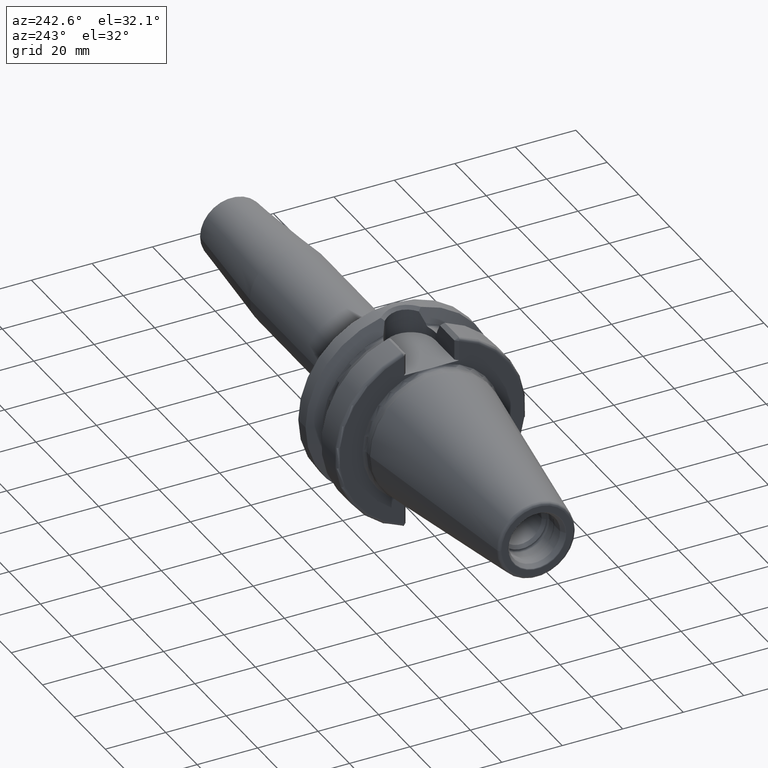
[diagram: clean part render]
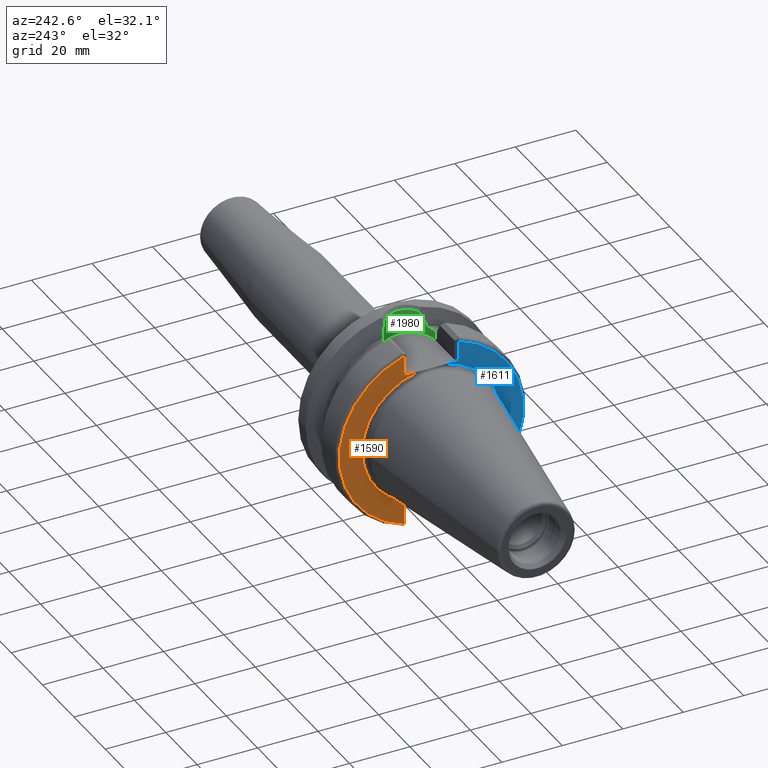
[diagram: same view with three faces highlighted in distinct colors, each labeled with its STEP entity id]
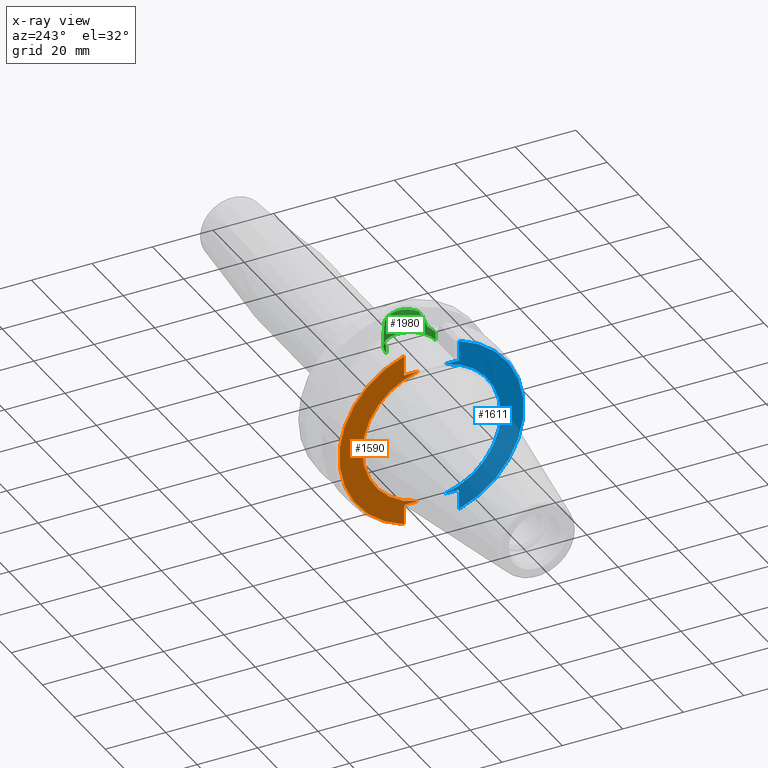
[diagram: x-ray of the same camera — body ghosted, the three highlighted faces saturated]
A machine part, auxiliary view with three faces highlighted in distinct colors.
The next image is the same camera in x-ray (body ghosted, the three faces saturated) — at least one of them is partly hidden behind the body in this view.
Their STEP definitions:

[orange] entity #1590 — the highlighted planar face has unit normal (1, 0, 0).
#96=CARTESIAN_POINT('',(2.E0,0.E0,0.E0));
#97=DIRECTION('',(-1.E0,0.E0,0.E0));
#98=DIRECTION('',(0.E0,1.E0,0.E0));
#99=AXIS2_PLACEMENT_3D('',#96,#97,#98);
#127=DIRECTION('',(2.137863157138E-6,2.138092596513E-6,9.999999999954E-1));
#128=VECTOR('',#127,6.649288203884E0);
#129=CARTESIAN_POINT('',(1.999985784732E0,9.094985783206E0,-2.909928820385E1));
#130=LINE('',#129,#128);
#131=DIRECTION('',(-4.462834027332E-6,-4.463945839096E-6,9.999999999801E-1));
#132=VECTOR('',#131,6.649296399125E0);
#133=CARTESIAN_POINT('',(2.E0,9.095E0,2.245E1));
#134=LINE('',#133,#132);
#592=CARTESIAN_POINT('',(2.E0,0.E0,0.E0));
#593=DIRECTION('',(-1.E0,0.E0,0.E0));
#594=DIRECTION('',(0.E0,2.983190614061E-1,9.544662055839E-1));
#595=AXIS2_PLACEMENT_3D('',#592,#593,#594);
#688=DIRECTION('',(0.E0,1.E0,0.E0));
#689=VECTOR('',#688,4.706022328605E0);
#690=CARTESIAN_POINT('',(2.E0,4.388977671395E0,2.245E1));
#691=LINE('',#690,#689);
#709=CARTESIAN_POINT('',(2.E0,0.E0,0.E0));
#710=DIRECTION('',(1.E0,0.E0,0.E0));
#711=DIRECTION('',(0.E0,1.E0,0.E0));
#712=AXIS2_PLACEMENT_3D('',#709,#710,#711);
#746=DIRECTION('',(0.E0,-1.E0,0.E0));
#747=VECTOR('',#746,4.706022328605E0);
#748=CARTESIAN_POINT('',(2.E0,9.095E0,-2.245E1));
#749=LINE('',#748,#747);
#1242=CARTESIAN_POINT('',(2.E0,2.2875E1,0.E0));
#1244=VERTEX_POINT('',#1242);
#1312=CARTESIAN_POINT('',(2.E0,4.388977671395E0,2.245E1));
#1313=VERTEX_POINT('',#1312);
#1320=CARTESIAN_POINT('',(2.E0,4.388977671395E0,-2.245E1));
#1321=VERTEX_POINT('',#1320);
#1358=CARTESIAN_POINT('',(2.E0,9.095027762300E0,2.909928051090E1));
#1360=VERTEX_POINT('',#1358);
#1362=CARTESIAN_POINT('',(2.E0,9.095E0,2.245E1));
#1363=VERTEX_POINT('',#1362);
#1372=CARTESIAN_POINT('',(1.999985784732E0,9.094985783206E0,-2.909928820385E1));
#1373=CARTESIAN_POINT('',(2.E0,9.095E0,-2.245E1));
#1374=VERTEX_POINT('',#1372);
#1375=VERTEX_POINT('',#1373);
#1570=CARTESIAN_POINT('',(2.E0,0.E0,0.E0));
#1571=DIRECTION('',(1.E0,0.E0,0.E0));
#1572=DIRECTION('',(0.E0,-1.E0,0.E0));
#1573=AXIS2_PLACEMENT_3D('',#1570,#1571,#1572);
#1574=PLANE('',#1573);
#1576=ORIENTED_EDGE('',*,*,#1575,.F.);
#1578=ORIENTED_EDGE('',*,*,#1577,.F.);
#1580=ORIENTED_EDGE('',*,*,#1579,.F.);
#1582=ORIENTED_EDGE('',*,*,#1581,.F.);
#1584=ORIENTED_EDGE('',*,*,#1583,.F.);
#1585=ORIENTED_EDGE('',*,*,#1556,.T.);
#1587=ORIENTED_EDGE('',*,*,#1586,.F.);
#1588=EDGE_LOOP('',(#1576,#1578,#1580,#1582,#1584,#1585,#1587));
#1589=FACE_OUTER_BOUND('',#1588,.F.);
#1590=ADVANCED_FACE('',(#1589),#1574,.F.);
#100=CIRCLE('',#99,2.2875E1);
#596=CIRCLE('',#595,3.04875E1);
#713=CIRCLE('',#712,2.2875E1);
#1556=EDGE_CURVE('',#1244,#1321,#100,.T.);
#1575=EDGE_CURVE('',#1374,#1375,#130,.T.);
#1577=EDGE_CURVE('',#1360,#1374,#596,.T.);
#1579=EDGE_CURVE('',#1363,#1360,#134,.T.);
#1581=EDGE_CURVE('',#1313,#1363,#691,.T.);
#1583=EDGE_CURVE('',#1244,#1313,#713,.T.);
#1586=EDGE_CURVE('',#1375,#1321,#749,.T.);

[blue] entity #1611 — the highlighted planar face has unit normal (1, 0, 0).
#111=CARTESIAN_POINT('',(2.E0,0.E0,0.E0));
#112=DIRECTION('',(-1.E0,0.E0,0.E0));
#113=DIRECTION('',(0.E0,-1.918678763451E-1,-9.814207650273E-1));
#114=AXIS2_PLACEMENT_3D('',#111,#112,#113);
#135=DIRECTION('',(-2.137863157207E-6,2.138092595446E-6,-9.999999999954E-1));
#136=VECTOR('',#135,6.649288203879E0);
#137=CARTESIAN_POINT('',(2.E0,-9.095E0,-2.245E1));
#138=LINE('',#137,#136);
#139=DIRECTION('',(4.462834027234E-6,-4.463945838797E-6,-9.999999999801E-1));
#140=VECTOR('',#139,6.649296399172E0);
#141=CARTESIAN_POINT('',(1.999970325294E0,-9.094970317901E0,2.909929639904E1));
#142=LINE('',#141,#140);
#597=CARTESIAN_POINT('',(1.999985784732E0,-9.094985783206E0,-2.909928820385E1));
#608=CARTESIAN_POINT('',(2.E0,0.E0,0.E0));
#609=DIRECTION('',(-1.E0,0.E0,0.E0));
#610=DIRECTION('',(0.E0,-2.983190208830E-1,-9.544662182495E-1));
#611=AXIS2_PLACEMENT_3D('',#608,#609,#610);
#684=DIRECTION('',(0.E0,1.E0,0.E0));
#685=VECTOR('',#684,4.706022328605E0);
#686=CARTESIAN_POINT('',(2.E0,-9.095E0,2.245E1));
#687=LINE('',#686,#685);
#725=CARTESIAN_POINT('',(2.E0,0.E0,0.E0));
#726=DIRECTION('',(1.E0,0.E0,0.E0));
#727=DIRECTION('',(0.E0,-1.918678763451E-1,9.814207650273E-1));
#728=AXIS2_PLACEMENT_3D('',#725,#726,#727);
#750=DIRECTION('',(0.E0,-1.E0,0.E0));
#751=VECTOR('',#750,4.706022328605E0);
#752=CARTESIAN_POINT('',(2.E0,-4.388977671395E0,-2.245E1));
#753=LINE('',#752,#751);
#1248=CARTESIAN_POINT('',(2.E0,-2.2875E1,0.E0));
#1250=VERTEX_POINT('',#1248);
#1314=CARTESIAN_POINT('',(2.E0,-4.388977671395E0,2.245E1));
#1315=VERTEX_POINT('',#1314);
#1322=CARTESIAN_POINT('',(2.E0,-4.388977671395E0,-2.245E1));
#1323=VERTEX_POINT('',#1322);
#1352=CARTESIAN_POINT('',(1.999970325294E0,-9.094970317901E0,2.909929639904E1));
#1353=CARTESIAN_POINT('',(2.E0,-9.095E0,2.245E1));
#1354=VERTEX_POINT('',#1352);
#1355=VERTEX_POINT('',#1353);
#1377=VERTEX_POINT('',#597);
#1379=CARTESIAN_POINT('',(2.E0,-9.095E0,-2.245E1));
#1380=VERTEX_POINT('',#1379);
#1591=CARTESIAN_POINT('',(2.E0,0.E0,0.E0));
#1592=DIRECTION('',(1.E0,0.E0,0.E0));
#1593=DIRECTION('',(0.E0,-1.E0,0.E0));
#1594=AXIS2_PLACEMENT_3D('',#1591,#1592,#1593);
#1595=PLANE('',#1594);
#1597=ORIENTED_EDGE('',*,*,#1596,.F.);
#1599=ORIENTED_EDGE('',*,*,#1598,.F.);
#1600=ORIENTED_EDGE('',*,*,#1563,.T.);
#1602=ORIENTED_EDGE('',*,*,#1601,.F.);
#1604=ORIENTED_EDGE('',*,*,#1603,.F.);
#1606=ORIENTED_EDGE('',*,*,#1605,.F.);
#1608=ORIENTED_EDGE('',*,*,#1607,.F.);
#1609=EDGE_LOOP('',(#1597,#1599,#1600,#1602,#1604,#1606,#1608));
#1610=FACE_OUTER_BOUND('',#1609,.F.);
#1611=ADVANCED_FACE('',(#1610),#1595,.F.);
#115=CIRCLE('',#114,2.2875E1);
#612=CIRCLE('',#611,3.04875E1);
#729=CIRCLE('',#728,2.2875E1);
#1563=EDGE_CURVE('',#1323,#1250,#115,.T.);
#1596=EDGE_CURVE('',#1380,#1377,#138,.T.);
#1598=EDGE_CURVE('',#1323,#1380,#753,.T.);
#1601=EDGE_CURVE('',#1315,#1250,#729,.T.);
#1603=EDGE_CURVE('',#1355,#1315,#687,.T.);
#1605=EDGE_CURVE('',#1354,#1355,#142,.T.);
#1607=EDGE_CURVE('',#1377,#1354,#612,.T.);

[green] entity #1980 — the highlighted cylindrical surface (edge-blend (fillet) strip) has radius 8.095 mm, axis along (0, 0, 1).
#360=CARTESIAN_POINT('',(1.83875E1,7.421588020768E0,2.530929979770E1));
#361=CARTESIAN_POINT('',(1.804170386658E1,7.572200800424E0,2.526513476705E1));
#362=CARTESIAN_POINT('',(1.734035783533E1,7.820815510938E0,2.518941465745E1));
#363=CARTESIAN_POINT('',(1.625266243215E1,8.045449937199E0,2.511808739773E1));
#364=CARTESIAN_POINT('',(1.552274115811E1,8.095E0,2.510202382279E1));
#365=CARTESIAN_POINT('',(1.5155E1,8.095E0,2.510202382279E1));
#379=CARTESIAN_POINT('',(1.5155E1,-8.095E0,2.510202382279E1));
#380=CARTESIAN_POINT('',(1.552274116086E1,-8.095E0,2.510202382279E1));
#381=CARTESIAN_POINT('',(1.625266243851E1,-8.045449936191E0,2.511808739805E1));
#382=CARTESIAN_POINT('',(1.734035783411E1,-7.820815511030E0,2.518941465742E1));
#383=CARTESIAN_POINT('',(1.804170386611E1,-7.572200800631E0,2.526513476699E1));
#384=CARTESIAN_POINT('',(1.83875E1,-7.421588020768E0,2.530929979770E1));
#470=DIRECTION('',(0.E0,0.E0,1.E0));
#471=VECTOR('',#470,2.652023822792E0);
#472=CARTESIAN_POINT('',(1.5155E1,-8.095E0,2.245E1));
#473=LINE('',#472,#471);
#474=CARTESIAN_POINT('',(1.91375E1,7.047603759435E0,2.619345159100E1));
#475=CARTESIAN_POINT('',(1.91375E1,7.047603759435E0,2.612998725804E1));
#476=CARTESIAN_POINT('',(1.912324356271E1,7.055692563985E0,2.600243680224E1));
#477=CARTESIAN_POINT('',(1.905138585928E1,7.095863125167E0,2.579909751285E1));
#478=CARTESIAN_POINT('',(1.893129669655E1,7.160762150281E0,2.561408219456E1));
#479=CARTESIAN_POINT('',(1.877499389890E1,7.241428280265E0,2.546209548146E1));
#480=CARTESIAN_POINT('',(1.857872916820E1,7.336410466726E0,2.535018075128E1));
#481=CARTESIAN_POINT('',(1.845215642376E1,7.393426677236E0,2.531755770651E1));
#482=CARTESIAN_POINT('',(1.83875E1,7.421588020768E0,2.530929979770E1));
#484=DIRECTION('',(0.E0,0.E0,1.E0));
#485=VECTOR('',#484,5.185648086091E-2);
#486=CARTESIAN_POINT('',(1.91375E1,7.047603759435E0,2.619345159100E1));
#487=LINE('',#486,#485);
#488=CARTESIAN_POINT('',(2.097101805574E1,5.630538071564E0,2.982397761288E1));
#489=CARTESIAN_POINT('',(2.082604881782E1,5.780282855198E0,2.954017722398E1));
#490=CARTESIAN_POINT('',(2.053095055184E1,6.062081832034E0,2.896282820239E1));
#491=CARTESIAN_POINT('',(2.007321533351E1,6.438417817754E0,2.806855111877E1));
#492=CARTESIAN_POINT('',(1.960693883943E1,6.768577999667E0,2.715904469241E1));
#493=CARTESIAN_POINT('',(1.929432982957E1,6.958981467721E0,2.655036595187E1));
#494=CARTESIAN_POINT('',(1.91375E1,7.047603759435E0,2.624530807186E1));
#496=CARTESIAN_POINT('',(2.097101805574E1,5.630538071564E0,2.982397761288E1));
#497=CARTESIAN_POINT('',(2.105934811851E1,5.539315465481E0,2.984571977166E1));
#498=CARTESIAN_POINT('',(2.147664953399E1,5.087469676785E0,2.995066553172E1));
#499=CARTESIAN_POINT('',(2.213089910678E1,4.192993541984E0,3.013266724858E1));
#500=CARTESIAN_POINT('',(2.276760940421E1,2.877975365343E0,3.032860010333E1));
#501=CARTESIAN_POINT('',(2.315790479168E1,1.477331724989E0,3.045642416986E1));
#502=CARTESIAN_POINT('',(2.329282459092E1,3.489574686597E-2,3.050195760374E1));
#503=CARTESIAN_POINT('',(2.317034749764E1,-1.407990407149E0,3.046059480761E1));
#504=CARTESIAN_POINT('',(2.279239912771E1,-2.811458890034E0,3.033654610003E1));
#505=CARTESIAN_POINT('',(2.216739173750E1,-4.131625063197E0,3.014347060785E1));
#506=CARTESIAN_POINT('',(2.150727212273E1,-5.051007781490E0,2.995873684149E1));
#507=CARTESIAN_POINT('',(2.107584322555E1,-5.522277501799E0,2.984978414564E1));
#508=CARTESIAN_POINT('',(2.097101986641E1,-5.630536201239E0,2.982398115757E1));
#510=CARTESIAN_POINT('',(1.91375E1,-7.047603759435E0,2.624530807186E1));
#511=CARTESIAN_POINT('',(1.929439846909E1,-6.958942680509E0,2.655049946618E1));
#512=CARTESIAN_POINT('',(1.960708097731E1,-6.768483112184E0,2.715932176805E1));
#513=CARTESIAN_POINT('',(2.007318172595E1,-6.438434899025E0,2.806848574420E1));
#514=CARTESIAN_POINT('',(2.053077179900E1,-6.062239171320E0,2.896247872395E1));
#515=CARTESIAN_POINT('',(2.082597009394E1,-5.780364268794E0,2.954002310797E1));
#516=CARTESIAN_POINT('',(2.097101986641E1,-5.630536201239E0,2.982398115757E1));
#518=DIRECTION('',(0.E0,0.E0,1.E0));
#519=VECTOR('',#518,5.185648086090E-2);
#520=CARTESIAN_POINT('',(1.91375E1,-7.047603759435E0,2.619345159100E1));
#521=LINE('',#520,#519);
#522=CARTESIAN_POINT('',(1.83875E1,-7.421588020768E0,2.530929979770E1));
#523=CARTESIAN_POINT('',(1.845215642376E1,-7.393426677236E0,2.531755770651E1));
#524=CARTESIAN_POINT('',(1.857872916820E1,-7.336410466726E0,2.535018075128E1));
#525=CARTESIAN_POINT('',(1.877499389890E1,-7.241428280265E0,2.546209548146E1));
#526=CARTESIAN_POINT('',(1.893129669655E1,-7.160762150281E0,2.561408219456E1));
#527=CARTESIAN_POINT('',(1.905138585928E1,-7.095863125167E0,2.579909751285E1));
#528=CARTESIAN_POINT('',(1.912324356271E1,-7.055692563985E0,2.600243680224E1));
#529=CARTESIAN_POINT('',(1.91375E1,-7.047603759435E0,2.612998725804E1));
#530=CARTESIAN_POINT('',(1.91375E1,-7.047603759435E0,2.619345159100E1));
#661=DIRECTION('',(0.E0,0.E0,1.E0));
#662=VECTOR('',#661,2.652023822792E0);
#663=CARTESIAN_POINT('',(1.5155E1,8.095E0,2.245E1));
#664=LINE('',#663,#662);
#696=CARTESIAN_POINT('',(1.5155E1,0.E0,2.245E1));
#697=DIRECTION('',(0.E0,0.E0,1.E0));
#698=DIRECTION('',(0.E0,-1.E0,0.E0));
#699=AXIS2_PLACEMENT_3D('',#696,#697,#698);
#1194=CARTESIAN_POINT('',(1.91375E1,-7.047603759435E0,2.619345159100E1));
#1196=VERTEX_POINT('',#1194);
#1199=CARTESIAN_POINT('',(1.83875E1,-7.421588020768E0,2.530929979770E1));
#1201=VERTEX_POINT('',#1199);
#1202=CARTESIAN_POINT('',(1.83875E1,7.421588020768E0,2.530929979770E1));
#1204=VERTEX_POINT('',#1202);
#1207=CARTESIAN_POINT('',(1.91375E1,7.047603759435E0,2.619345159100E1));
#1209=VERTEX_POINT('',#1207);
#1210=CARTESIAN_POINT('',(1.91375E1,7.047603759435E0,2.624530807186E1));
#1212=VERTEX_POINT('',#1210);
#1215=CARTESIAN_POINT('',(1.91375E1,-7.047603759435E0,2.624530807186E1));
#1217=VERTEX_POINT('',#1215);
#1308=CARTESIAN_POINT('',(1.5155E1,-8.095E0,2.245E1));
#1309=CARTESIAN_POINT('',(1.5155E1,8.095E0,2.245E1));
#1310=VERTEX_POINT('',#1308);
#1311=VERTEX_POINT('',#1309);
#1324=CARTESIAN_POINT('',(1.5155E1,8.095E0,2.510202382279E1));
#1325=VERTEX_POINT('',#1324);
#1327=CARTESIAN_POINT('',(1.5155E1,-8.095E0,2.510202382279E1));
#1328=VERTEX_POINT('',#1327);
#1330=VERTEX_POINT('',#516);
#1331=VERTEX_POINT('',#488);
#1955=CARTESIAN_POINT('',(1.5155E1,0.E0,2.245E1));
#1956=DIRECTION('',(0.E0,0.E0,1.E0));
#1957=DIRECTION('',(1.E0,0.E0,0.E0));
#1958=AXIS2_PLACEMENT_3D('',#1955,#1956,#1957);
#1959=CYLINDRICAL_SURFACE('',#1958,8.095E0);
#1960=ORIENTED_EDGE('',*,*,#1864,.F.);
#1962=ORIENTED_EDGE('',*,*,#1961,.F.);
#1964=ORIENTED_EDGE('',*,*,#1963,.T.);
#1966=ORIENTED_EDGE('',*,*,#1965,.T.);
#1967=ORIENTED_EDGE('',*,*,#1846,.F.);
#1968=ORIENTED_EDGE('',*,*,#1937,.F.);
#1969=ORIENTED_EDGE('',*,*,#1909,.T.);
#1971=ORIENTED_EDGE('',*,*,#1970,.F.);
#1973=ORIENTED_EDGE('',*,*,#1972,.T.);
#1975=ORIENTED_EDGE('',*,*,#1974,.F.);
#1976=ORIENTED_EDGE('',*,*,#1921,.F.);
#1977=ORIENTED_EDGE('',*,*,#1950,.F.);
#1978=EDGE_LOOP('',(#1960,#1962,#1964,#1966,#1967,#1968,#1969,#1971,#1973,#1975,
#1976,#1977));
#1979=FACE_OUTER_BOUND('',#1978,.F.);
#1980=ADVANCED_FACE('',(#1979),#1959,.F.);
#366=B_SPLINE_CURVE_WITH_KNOTS('',3,(#360,#361,#362,#363,#364,#365),
.UNSPECIFIED.,.F.,.F.,(4,1,1,4),(0.E0,3.333333333333E-1,6.666666666667E-1,1.E0),
.UNSPECIFIED.);
#385=B_SPLINE_CURVE_WITH_KNOTS('',3,(#379,#380,#381,#382,#383,#384),
.UNSPECIFIED.,.F.,.F.,(4,1,1,4),(0.E0,3.333333333333E-1,6.666666666667E-1,1.E0),
.UNSPECIFIED.);
#483=B_SPLINE_CURVE_WITH_KNOTS('',3,(#474,#475,#476,#477,#478,#479,#480,#481,
#482),.UNSPECIFIED.,.F.,.F.,(4,1,1,1,1,1,4),(0.E0,1.666666666667E-1,
3.333333333333E-1,5.E-1,6.666666666667E-1,8.333333333333E-1,1.E0),
.UNSPECIFIED.);
#495=B_SPLINE_CURVE_WITH_KNOTS('',3,(#488,#489,#490,#491,#492,#493,#494),
.UNSPECIFIED.,.F.,.F.,(4,1,1,1,4),(0.E0,2.5E-1,5.E-1,7.5E-1,1.E0),
.UNSPECIFIED.);
#509=B_SPLINE_CURVE_WITH_KNOTS('',3,(#496,#497,#498,#499,#500,#501,#502,#503,
#504,#505,#506,#507,#508),.UNSPECIFIED.,.F.,.F.,(4,1,1,1,1,1,1,1,1,1,4),(0.E0,
3.038567668919E-2,1.470802694969E-1,2.637748623046E-1,3.804694551124E-1,
4.971640479201E-1,6.138586407278E-1,7.305532335355E-1,8.472478263433E-1,
9.639424191510E-1,1.E0),.UNSPECIFIED.);
#517=B_SPLINE_CURVE_WITH_KNOTS('',3,(#510,#511,#512,#513,#514,#515,#516),
.UNSPECIFIED.,.F.,.F.,(4,1,1,1,4),(0.E0,2.5E-1,5.E-1,7.5E-1,1.E0),
.UNSPECIFIED.);
#531=B_SPLINE_CURVE_WITH_KNOTS('',3,(#522,#523,#524,#525,#526,#527,#528,#529,
#530),.UNSPECIFIED.,.F.,.F.,(4,1,1,1,1,1,4),(0.E0,1.666666666667E-1,
3.333333333333E-1,5.E-1,6.666666666667E-1,8.333333333333E-1,1.E0),
.UNSPECIFIED.);
#700=CIRCLE('',#699,8.095E0);
#1846=EDGE_CURVE('',#1204,#1325,#366,.T.);
#1864=EDGE_CURVE('',#1328,#1201,#385,.T.);
#1909=EDGE_CURVE('',#1209,#1212,#487,.T.);
#1921=EDGE_CURVE('',#1196,#1217,#521,.T.);
#1937=EDGE_CURVE('',#1209,#1204,#483,.T.);
#1950=EDGE_CURVE('',#1201,#1196,#531,.T.);
#1961=EDGE_CURVE('',#1310,#1328,#473,.T.);
#1963=EDGE_CURVE('',#1310,#1311,#700,.T.);
#1965=EDGE_CURVE('',#1311,#1325,#664,.T.);
#1970=EDGE_CURVE('',#1331,#1212,#495,.T.);
#1972=EDGE_CURVE('',#1331,#1330,#509,.T.);
#1974=EDGE_CURVE('',#1217,#1330,#517,.T.);